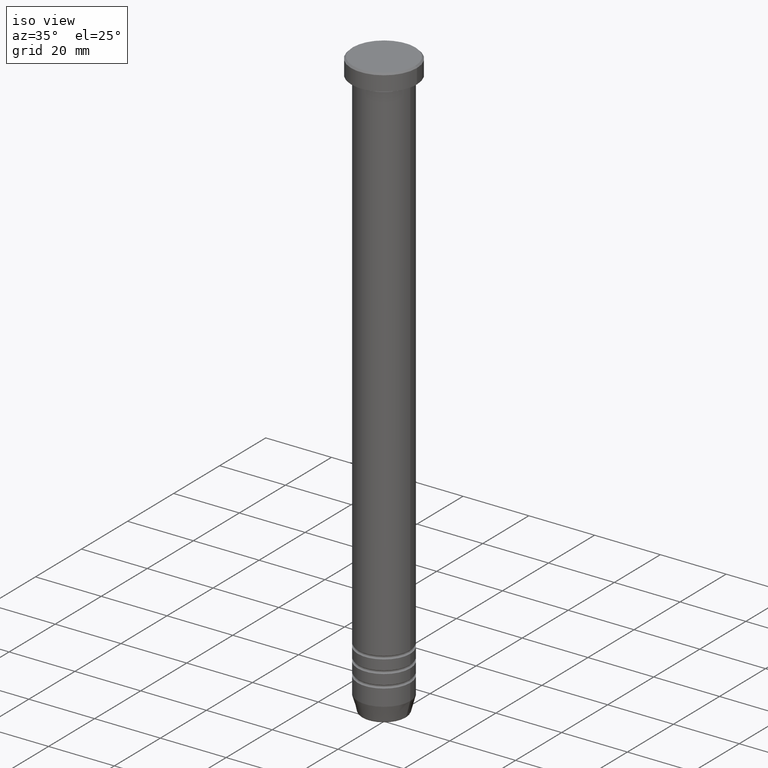
[diagram: clean part render]
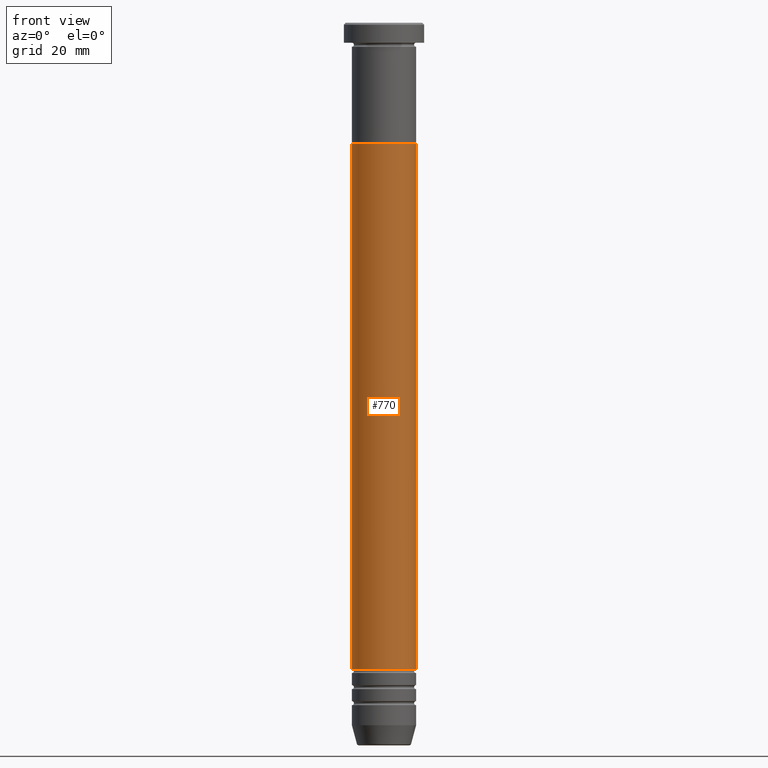
[diagram: tour spotlight — one face highlighted and labeled with its STEP entity id]
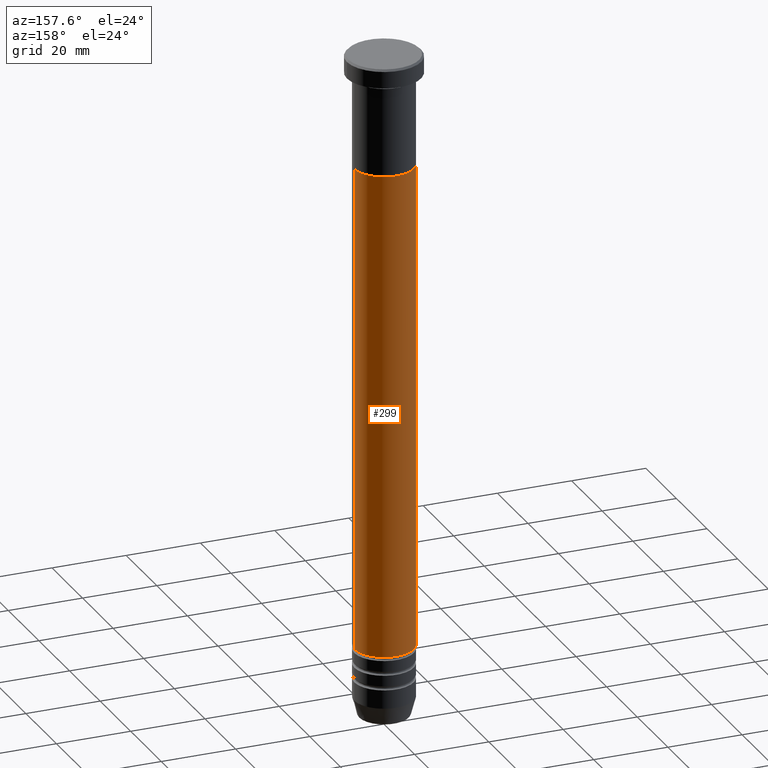
[diagram: tour spotlight — one face highlighted and labeled with its STEP entity id]
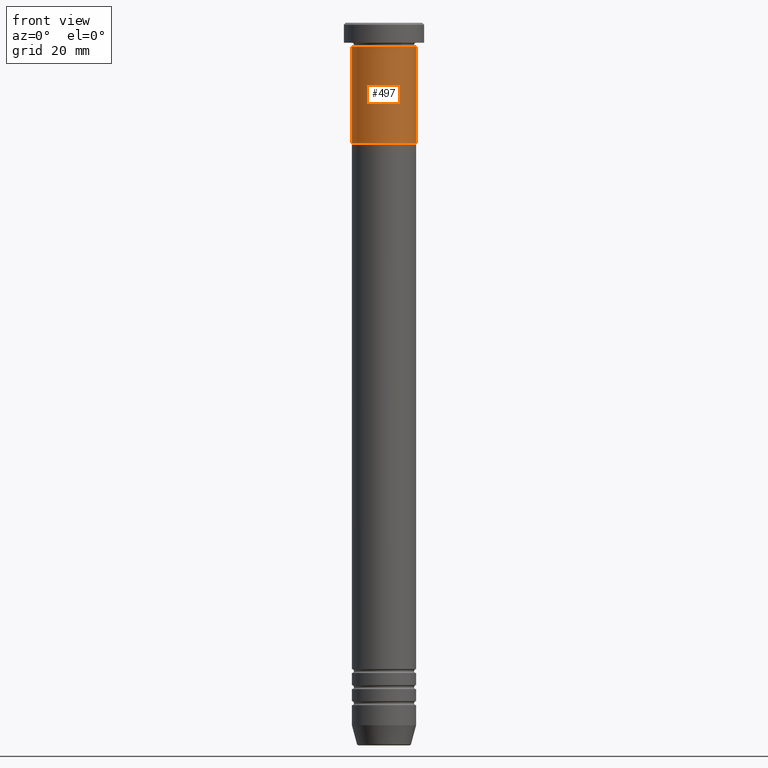
[diagram: tour spotlight — one face highlighted and labeled with its STEP entity id]
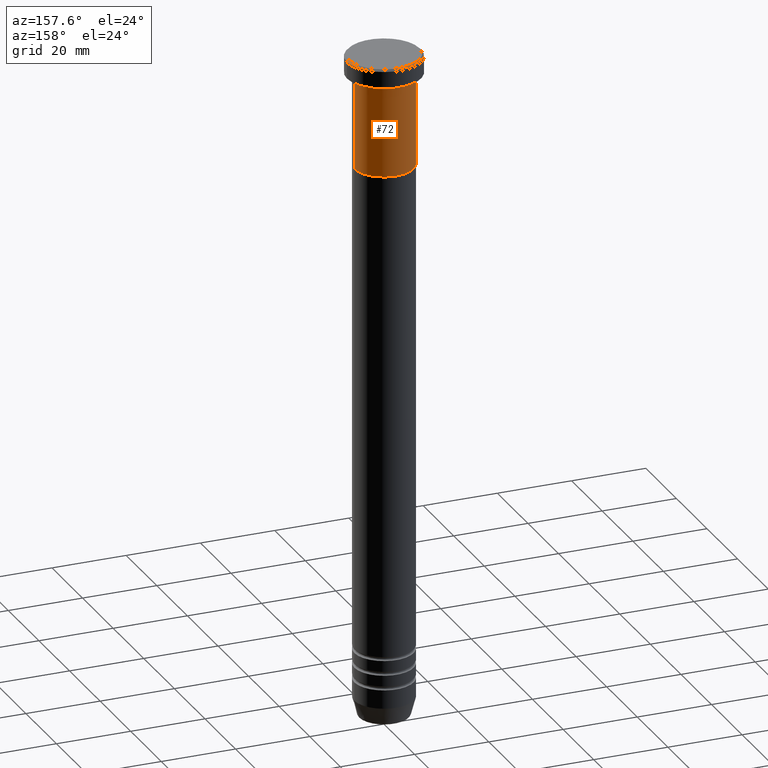
[diagram: tour spotlight — one face highlighted and labeled with its STEP entity id]
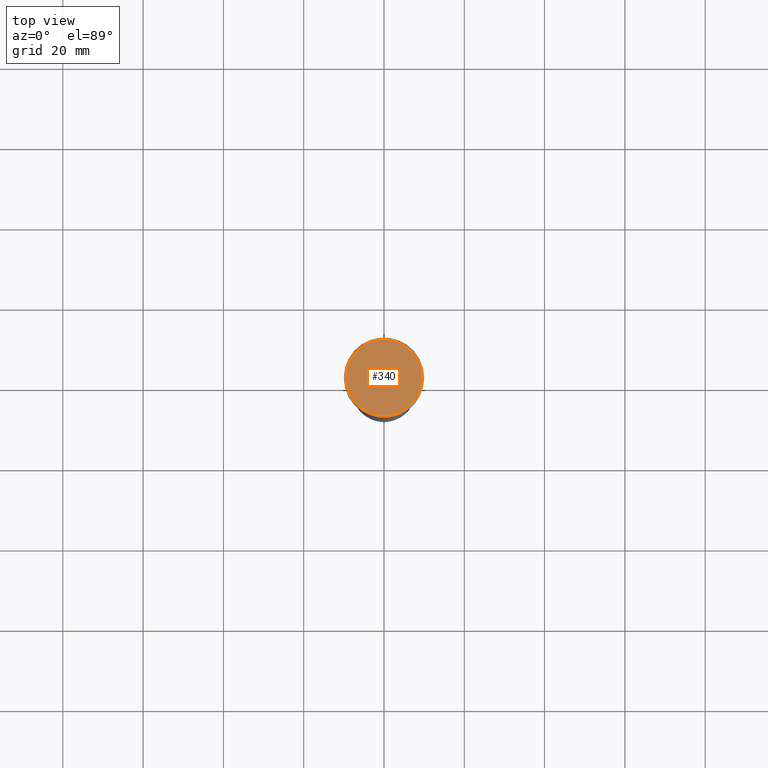
[diagram: tour spotlight — one face highlighted and labeled with its STEP entity id]
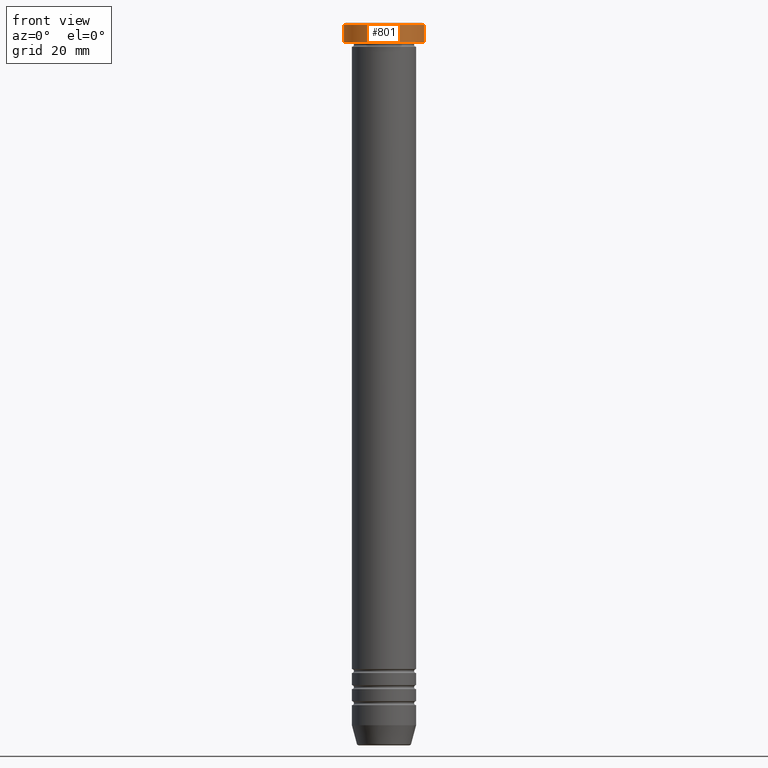
[diagram: tour spotlight — one face highlighted and labeled with its STEP entity id]
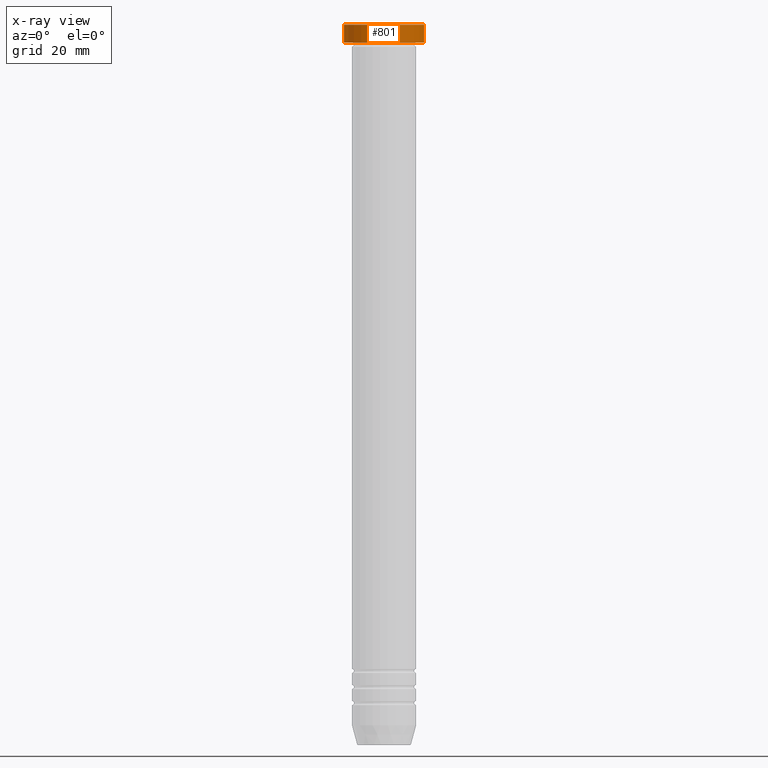
[diagram: x-ray of the same camera — body ghosted, this tour face saturated]
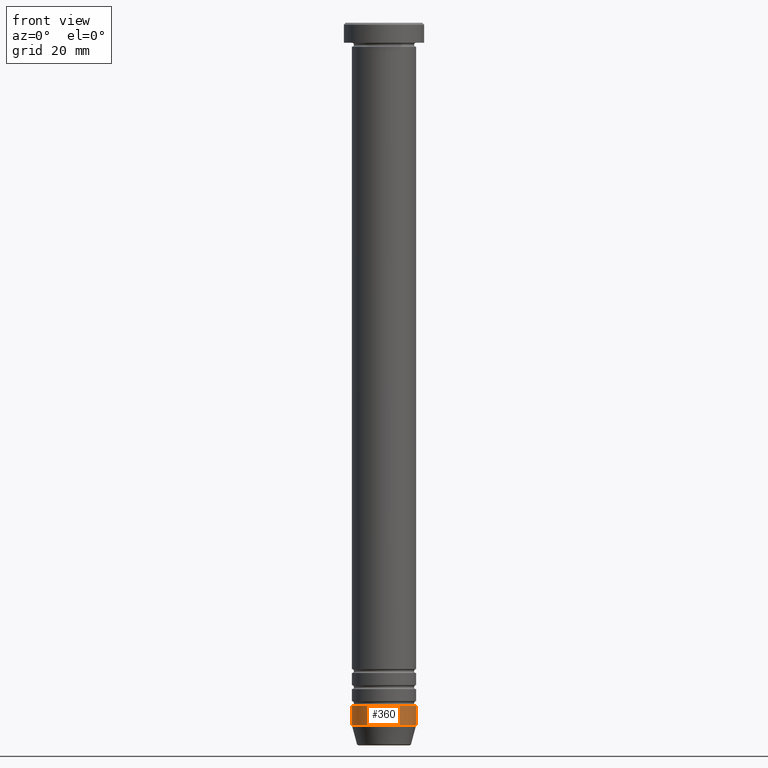
[diagram: tour spotlight — one face highlighted and labeled with its STEP entity id]
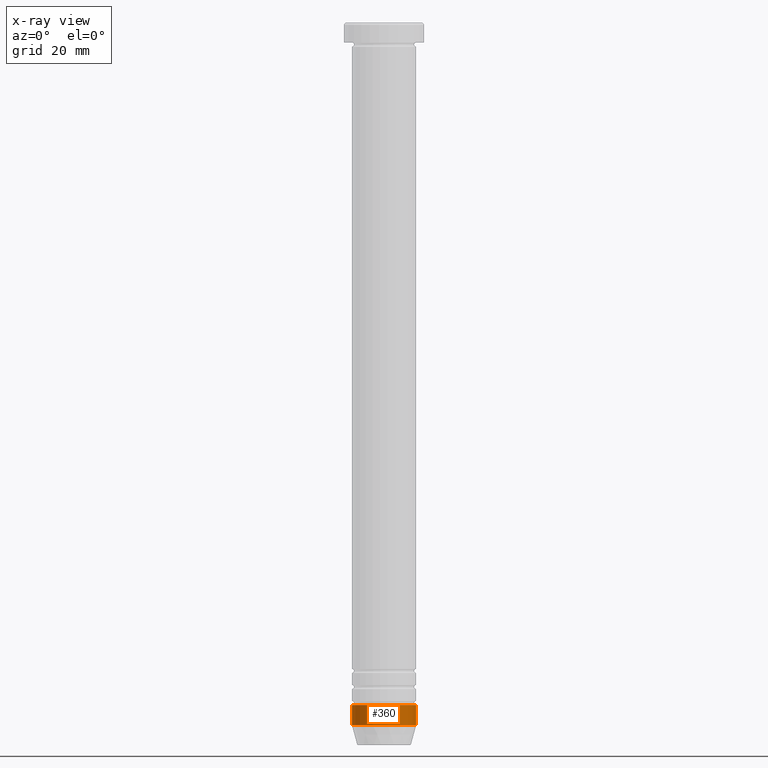
[diagram: x-ray of the same camera — body ghosted, this tour face saturated]
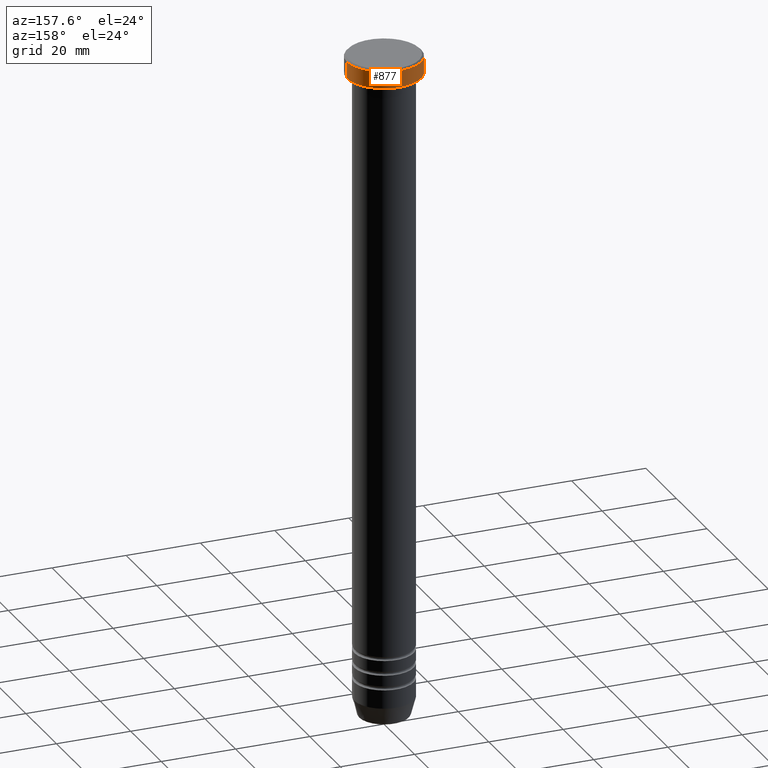
[diagram: tour spotlight — one face highlighted and labeled with its STEP entity id]
A machine part: a face-by-face anatomy tour. The part has 39 B-rep faces; the first image is the clean iso view, then the 8 largest visible faces are spotlighted one at a time (largest first), each with its STEP entity span.

Face 1 — front view, entity #770. In plain terms, the highlighted cylindrical surface (edge-blend (fillet) strip) has radius 8 mm, axis along (-0, -0, 1).
Definition (entity closure, byte-faithful):
#107 = AXIS2_PLACEMENT_3D ( 'NONE', #342, #1007, #666 ) ;
#118 = DIRECTION ( 'NONE',  ( -0.000000000000000000, -0.000000000000000000, 1.000000000000000000 ) ) ;
#130 = LINE ( 'NONE', #274, #809 ) ;
#165 = VERTEX_POINT ( 'NONE', #902 ) ;
#178 = VERTEX_POINT ( 'NONE', #323 ) ;
#195 = CARTESIAN_POINT ( 'NONE',  ( 8.000000000000000000, 0.000000000000000000, -30.00000000000000000 ) ) ;
#213 = CYLINDRICAL_SURFACE ( 'NONE', #454, 7.999999999999996447 ) ;
#223 = CIRCLE ( 'NONE', #107, 8.000000000000000000 ) ;
#224 = EDGE_CURVE ( 'NONE', #298, #248, #223, .T. ) ;
#238 = EDGE_CURVE ( 'NONE', #178, #248, #275, .T. ) ;
#244 = DIRECTION ( 'NONE',  ( -0.000000000000000000, -0.000000000000000000, 1.000000000000000000 ) ) ;
#248 = VERTEX_POINT ( 'NONE', #195 ) ;
#255 = CIRCLE ( 'NONE', #387, 7.999999999999992895 ) ;
#257 = EDGE_LOOP ( 'NONE', ( #793, #715, #863, #1016 ) ) ;
#274 = CARTESIAN_POINT ( 'NONE',  ( -7.999999999999996447, 9.797174393178821713E-16, 0.000000000000000000 ) ) ;
#275 = LINE ( 'NONE', #528, #728 ) ;
#284 = DIRECTION ( 'NONE',  ( -0.000000000000000000, -0.000000000000000000, 1.000000000000000000 ) ) ;
#298 = VERTEX_POINT ( 'NONE', #448 ) ;
#323 = CARTESIAN_POINT ( 'NONE',  ( 7.999999999999992895, 0.000000000000000000, -161.0000000000000284 ) ) ;
#342 = CARTESIAN_POINT ( 'NONE',  ( 0.000000000000000000, 0.000000000000000000, -30.00000000000000000 ) ) ;
#387 = AXIS2_PLACEMENT_3D ( 'NONE', #891, #244, #832 ) ;
#448 = CARTESIAN_POINT ( 'NONE',  ( -8.000000000000000000, 9.797174393178825657E-16, -30.00000000000000000 ) ) ;
#454 = AXIS2_PLACEMENT_3D ( 'NONE', #757, #772, #775 ) ;
#524 = EDGE_CURVE ( 'NONE', #165, #178, #255, .T. ) ;
#528 = CARTESIAN_POINT ( 'NONE',  ( 7.999999999999996447, 0.000000000000000000, 0.000000000000000000 ) ) ;
#664 = EDGE_CURVE ( 'NONE', #165, #298, #130, .T. ) ;
#666 = DIRECTION ( 'NONE',  ( 1.000000000000000000, 0.000000000000000000, 0.000000000000000000 ) ) ;
#715 = ORIENTED_EDGE ( 'NONE', *, *, #524, .T. ) ;
#728 = VECTOR ( 'NONE', #118, 1000.000000000000000 ) ;
#757 = CARTESIAN_POINT ( 'NONE',  ( 0.000000000000000000, 0.000000000000000000, 0.000000000000000000 ) ) ;
#770 = ADVANCED_FACE ( 'NONE', ( #849 ), #213, .T. ) ;
#772 = DIRECTION ( 'NONE',  ( -0.000000000000000000, -0.000000000000000000, 1.000000000000000000 ) ) ;
#775 = DIRECTION ( 'NONE',  ( 1.000000000000000000, 0.000000000000000000, 0.000000000000000000 ) ) ;
#793 = ORIENTED_EDGE ( 'NONE', *, *, #664, .F. ) ;
#809 = VECTOR ( 'NONE', #284, 1000.000000000000000 ) ;
#832 = DIRECTION ( 'NONE',  ( 1.000000000000000000, 0.000000000000000000, 0.000000000000000000 ) ) ;
#849 = FACE_OUTER_BOUND ( 'NONE', #257, .T. ) ;
#863 = ORIENTED_EDGE ( 'NONE', *, *, #238, .T. ) ;
#891 = CARTESIAN_POINT ( 'NONE',  ( 0.000000000000000000, 0.000000000000000000, -161.0000000000000284 ) ) ;
#902 = CARTESIAN_POINT ( 'NONE',  ( -7.999999999999992895, 9.797174393178819741E-16, -161.0000000000000284 ) ) ;
#1007 = DIRECTION ( 'NONE',  ( -0.000000000000000000, -0.000000000000000000, 1.000000000000000000 ) ) ;
#1016 = ORIENTED_EDGE ( 'NONE', *, *, #224, .F. ) ;

Face 2 — auxiliary view, entity #299. In plain terms, the highlighted cylindrical surface (edge-blend (fillet) strip) has radius 8 mm, axis along (-0, -0, 1).
Definition (entity closure, byte-faithful):
#66 = EDGE_LOOP ( 'NONE', ( #828, #836, #568, #269 ) ) ;
#69 = EDGE_CURVE ( 'NONE', #248, #298, #460, .T. ) ;
#109 = AXIS2_PLACEMENT_3D ( 'NONE', #1015, #374, #773 ) ;
#118 = DIRECTION ( 'NONE',  ( -0.000000000000000000, -0.000000000000000000, 1.000000000000000000 ) ) ;
#130 = LINE ( 'NONE', #274, #809 ) ;
#132 = DIRECTION ( 'NONE',  ( -0.000000000000000000, -0.000000000000000000, 1.000000000000000000 ) ) ;
#165 = VERTEX_POINT ( 'NONE', #902 ) ;
#178 = VERTEX_POINT ( 'NONE', #323 ) ;
#195 = CARTESIAN_POINT ( 'NONE',  ( 8.000000000000000000, 0.000000000000000000, -30.00000000000000000 ) ) ;
#238 = EDGE_CURVE ( 'NONE', #178, #248, #275, .T. ) ;
#248 = VERTEX_POINT ( 'NONE', #195 ) ;
#260 = EDGE_CURVE ( 'NONE', #178, #165, #422, .T. ) ;
#269 = ORIENTED_EDGE ( 'NONE', *, *, #238, .F. ) ;
#274 = CARTESIAN_POINT ( 'NONE',  ( -7.999999999999996447, 9.797174393178821713E-16, 0.000000000000000000 ) ) ;
#275 = LINE ( 'NONE', #528, #728 ) ;
#284 = DIRECTION ( 'NONE',  ( -0.000000000000000000, -0.000000000000000000, 1.000000000000000000 ) ) ;
#298 = VERTEX_POINT ( 'NONE', #448 ) ;
#299 = ADVANCED_FACE ( 'NONE', ( #358 ), #369, .T. ) ;
#323 = CARTESIAN_POINT ( 'NONE',  ( 7.999999999999992895, 0.000000000000000000, -161.0000000000000284 ) ) ;
#358 = FACE_OUTER_BOUND ( 'NONE', #66, .T. ) ;
#369 = CYLINDRICAL_SURFACE ( 'NONE', #109, 7.999999999999996447 ) ;
#374 = DIRECTION ( 'NONE',  ( -0.000000000000000000, -0.000000000000000000, 1.000000000000000000 ) ) ;
#422 = CIRCLE ( 'NONE', #1048, 7.999999999999992895 ) ;
#448 = CARTESIAN_POINT ( 'NONE',  ( -8.000000000000000000, 9.797174393178825657E-16, -30.00000000000000000 ) ) ;
#457 = DIRECTION ( 'NONE',  ( 1.000000000000000000, 0.000000000000000000, 0.000000000000000000 ) ) ;
#460 = CIRCLE ( 'NONE', #994, 8.000000000000000000 ) ;
#528 = CARTESIAN_POINT ( 'NONE',  ( 7.999999999999996447, 0.000000000000000000, 0.000000000000000000 ) ) ;
#568 = ORIENTED_EDGE ( 'NONE', *, *, #69, .F. ) ;
#612 = CARTESIAN_POINT ( 'NONE',  ( 0.000000000000000000, 0.000000000000000000, -161.0000000000000284 ) ) ;
#664 = EDGE_CURVE ( 'NONE', #165, #298, #130, .T. ) ;
#678 = DIRECTION ( 'NONE',  ( -0.000000000000000000, -0.000000000000000000, 1.000000000000000000 ) ) ;
#703 = DIRECTION ( 'NONE',  ( 1.000000000000000000, 0.000000000000000000, 0.000000000000000000 ) ) ;
#728 = VECTOR ( 'NONE', #118, 1000.000000000000000 ) ;
#767 = CARTESIAN_POINT ( 'NONE',  ( 0.000000000000000000, 0.000000000000000000, -30.00000000000000000 ) ) ;
#773 = DIRECTION ( 'NONE',  ( 1.000000000000000000, 0.000000000000000000, 0.000000000000000000 ) ) ;
#809 = VECTOR ( 'NONE', #284, 1000.000000000000000 ) ;
#828 = ORIENTED_EDGE ( 'NONE', *, *, #260, .T. ) ;
#836 = ORIENTED_EDGE ( 'NONE', *, *, #664, .T. ) ;
#902 = CARTESIAN_POINT ( 'NONE',  ( -7.999999999999992895, 9.797174393178819741E-16, -161.0000000000000284 ) ) ;
#994 = AXIS2_PLACEMENT_3D ( 'NONE', #767, #132, #457 ) ;
#1015 = CARTESIAN_POINT ( 'NONE',  ( 0.000000000000000000, 0.000000000000000000, 0.000000000000000000 ) ) ;
#1048 = AXIS2_PLACEMENT_3D ( 'NONE', #612, #678, #703 ) ;

Face 3 — front view, entity #497. In plain terms, the highlighted cylindrical surface (edge-blend (fillet) strip) has radius 8 mm, axis along (-0, -0, 1).
Definition (entity closure, byte-faithful):
#19 = EDGE_CURVE ( 'NONE', #185, #112, #368, .T. ) ;
#37 = EDGE_LOOP ( 'NONE', ( #707, #582, #105, #536 ) ) ;
#65 = CARTESIAN_POINT ( 'NONE',  ( -8.000000000000000000, 9.797174393178825657E-16, -6.000000000000000000 ) ) ;
#105 = ORIENTED_EDGE ( 'NONE', *, *, #19, .T. ) ;
#106 = VECTOR ( 'NONE', #416, 1000.000000000000000 ) ;
#112 = VERTEX_POINT ( 'NONE', #587 ) ;
#136 = DIRECTION ( 'NONE',  ( 1.000000000000000000, 0.000000000000000000, 0.000000000000000000 ) ) ;
#159 = CIRCLE ( 'NONE', #740, 8.000000000000000000 ) ;
#185 = VERTEX_POINT ( 'NONE', #815 ) ;
#296 = EDGE_CURVE ( 'NONE', #669, #185, #521, .T. ) ;
#321 = DIRECTION ( 'NONE',  ( 1.000000000000000000, 0.000000000000000000, 0.000000000000000000 ) ) ;
#363 = CARTESIAN_POINT ( 'NONE',  ( 8.000000000000000000, 0.000000000000000000, 0.000000000000000000 ) ) ;
#368 = LINE ( 'NONE', #363, #1036 ) ;
#413 = CYLINDRICAL_SURFACE ( 'NONE', #764, 8.000000000000000000 ) ;
#416 = DIRECTION ( 'NONE',  ( -0.000000000000000000, -0.000000000000000000, 1.000000000000000000 ) ) ;
#417 = VERTEX_POINT ( 'NONE', #65 ) ;
#488 = CARTESIAN_POINT ( 'NONE',  ( 0.000000000000000000, 0.000000000000000000, 0.000000000000000000 ) ) ;
#497 = ADVANCED_FACE ( 'NONE', ( #736 ), #413, .T. ) ;
#521 = CIRCLE ( 'NONE', #973, 8.000000000000000000 ) ;
#533 = DIRECTION ( 'NONE',  ( -0.000000000000000000, -0.000000000000000000, 1.000000000000000000 ) ) ;
#536 = ORIENTED_EDGE ( 'NONE', *, *, #774, .F. ) ;
#582 = ORIENTED_EDGE ( 'NONE', *, *, #296, .T. ) ;
#587 = CARTESIAN_POINT ( 'NONE',  ( 8.000000000000000000, 0.000000000000000000, -6.000000000000000000 ) ) ;
#611 = DIRECTION ( 'NONE',  ( 1.000000000000000000, 0.000000000000000000, 0.000000000000000000 ) ) ;
#669 = VERTEX_POINT ( 'NONE', #762 ) ;
#692 = CARTESIAN_POINT ( 'NONE',  ( 0.000000000000000000, 0.000000000000000000, -6.000000000000000000 ) ) ;
#707 = ORIENTED_EDGE ( 'NONE', *, *, #1019, .F. ) ;
#736 = FACE_OUTER_BOUND ( 'NONE', #37, .T. ) ;
#740 = AXIS2_PLACEMENT_3D ( 'NONE', #692, #1031, #611 ) ;
#762 = CARTESIAN_POINT ( 'NONE',  ( -8.000000000000000000, 9.797174393178825657E-16, -30.00000000000000000 ) ) ;
#764 = AXIS2_PLACEMENT_3D ( 'NONE', #488, #807, #321 ) ;
#774 = EDGE_CURVE ( 'NONE', #417, #112, #159, .T. ) ;
#807 = DIRECTION ( 'NONE',  ( -0.000000000000000000, -0.000000000000000000, 1.000000000000000000 ) ) ;
#815 = CARTESIAN_POINT ( 'NONE',  ( 8.000000000000000000, 0.000000000000000000, -30.00000000000000000 ) ) ;
#855 = CARTESIAN_POINT ( 'NONE',  ( 0.000000000000000000, 0.000000000000000000, -30.00000000000000000 ) ) ;
#910 = CARTESIAN_POINT ( 'NONE',  ( -8.000000000000000000, 9.797174393178825657E-16, 0.000000000000000000 ) ) ;
#920 = LINE ( 'NONE', #910, #106 ) ;
#947 = DIRECTION ( 'NONE',  ( -0.000000000000000000, -0.000000000000000000, 1.000000000000000000 ) ) ;
#973 = AXIS2_PLACEMENT_3D ( 'NONE', #855, #533, #136 ) ;
#1019 = EDGE_CURVE ( 'NONE', #669, #417, #920, .T. ) ;
#1031 = DIRECTION ( 'NONE',  ( -0.000000000000000000, -0.000000000000000000, 1.000000000000000000 ) ) ;
#1036 = VECTOR ( 'NONE', #947, 1000.000000000000000 ) ;

Face 4 — auxiliary view, entity #72. In plain terms, the highlighted cylindrical surface (edge-blend (fillet) strip) has radius 8 mm, axis along (-0, -0, 1).
Definition (entity closure, byte-faithful):
#19 = EDGE_CURVE ( 'NONE', #185, #112, #368, .T. ) ;
#60 = DIRECTION ( 'NONE',  ( 1.000000000000000000, 0.000000000000000000, 0.000000000000000000 ) ) ;
#65 = CARTESIAN_POINT ( 'NONE',  ( -8.000000000000000000, 9.797174393178825657E-16, -6.000000000000000000 ) ) ;
#72 = ADVANCED_FACE ( 'NONE', ( #546 ), #700, .T. ) ;
#106 = VECTOR ( 'NONE', #416, 1000.000000000000000 ) ;
#112 = VERTEX_POINT ( 'NONE', #587 ) ;
#148 = AXIS2_PLACEMENT_3D ( 'NONE', #254, #509, #755 ) ;
#152 = EDGE_CURVE ( 'NONE', #112, #417, #304, .T. ) ;
#185 = VERTEX_POINT ( 'NONE', #815 ) ;
#208 = CIRCLE ( 'NONE', #225, 8.000000000000000000 ) ;
#214 = DIRECTION ( 'NONE',  ( -0.000000000000000000, -0.000000000000000000, 1.000000000000000000 ) ) ;
#225 = AXIS2_PLACEMENT_3D ( 'NONE', #948, #214, #60 ) ;
#254 = CARTESIAN_POINT ( 'NONE',  ( 0.000000000000000000, 0.000000000000000000, -6.000000000000000000 ) ) ;
#304 = CIRCLE ( 'NONE', #148, 8.000000000000000000 ) ;
#324 = EDGE_CURVE ( 'NONE', #185, #669, #208, .T. ) ;
#363 = CARTESIAN_POINT ( 'NONE',  ( 8.000000000000000000, 0.000000000000000000, 0.000000000000000000 ) ) ;
#368 = LINE ( 'NONE', #363, #1036 ) ;
#389 = DIRECTION ( 'NONE',  ( -0.000000000000000000, -0.000000000000000000, 1.000000000000000000 ) ) ;
#396 = DIRECTION ( 'NONE',  ( 1.000000000000000000, 0.000000000000000000, 0.000000000000000000 ) ) ;
#416 = DIRECTION ( 'NONE',  ( -0.000000000000000000, -0.000000000000000000, 1.000000000000000000 ) ) ;
#417 = VERTEX_POINT ( 'NONE', #65 ) ;
#509 = DIRECTION ( 'NONE',  ( -0.000000000000000000, -0.000000000000000000, 1.000000000000000000 ) ) ;
#546 = FACE_OUTER_BOUND ( 'NONE', #643, .T. ) ;
#579 = ORIENTED_EDGE ( 'NONE', *, *, #19, .F. ) ;
#587 = CARTESIAN_POINT ( 'NONE',  ( 8.000000000000000000, 0.000000000000000000, -6.000000000000000000 ) ) ;
#643 = EDGE_LOOP ( 'NONE', ( #1014, #942, #923, #579 ) ) ;
#645 = AXIS2_PLACEMENT_3D ( 'NONE', #871, #389, #396 ) ;
#669 = VERTEX_POINT ( 'NONE', #762 ) ;
#700 = CYLINDRICAL_SURFACE ( 'NONE', #645, 8.000000000000000000 ) ;
#755 = DIRECTION ( 'NONE',  ( 1.000000000000000000, 0.000000000000000000, 0.000000000000000000 ) ) ;
#762 = CARTESIAN_POINT ( 'NONE',  ( -8.000000000000000000, 9.797174393178825657E-16, -30.00000000000000000 ) ) ;
#815 = CARTESIAN_POINT ( 'NONE',  ( 8.000000000000000000, 0.000000000000000000, -30.00000000000000000 ) ) ;
#871 = CARTESIAN_POINT ( 'NONE',  ( 0.000000000000000000, 0.000000000000000000, 0.000000000000000000 ) ) ;
#910 = CARTESIAN_POINT ( 'NONE',  ( -8.000000000000000000, 9.797174393178825657E-16, 0.000000000000000000 ) ) ;
#920 = LINE ( 'NONE', #910, #106 ) ;
#923 = ORIENTED_EDGE ( 'NONE', *, *, #152, .F. ) ;
#942 = ORIENTED_EDGE ( 'NONE', *, *, #1019, .T. ) ;
#947 = DIRECTION ( 'NONE',  ( -0.000000000000000000, -0.000000000000000000, 1.000000000000000000 ) ) ;
#948 = CARTESIAN_POINT ( 'NONE',  ( 0.000000000000000000, 0.000000000000000000, -30.00000000000000000 ) ) ;
#1014 = ORIENTED_EDGE ( 'NONE', *, *, #324, .T. ) ;
#1019 = EDGE_CURVE ( 'NONE', #669, #417, #920, .T. ) ;
#1036 = VECTOR ( 'NONE', #947, 1000.000000000000000 ) ;

Face 5 — top view, entity #340. In plain terms, the highlighted planar face has unit normal (0, -0, 1).
Definition (entity closure, byte-faithful):
#18 = ORIENTED_EDGE ( 'NONE', *, *, #935, .T. ) ;
#77 = ORIENTED_EDGE ( 'NONE', *, *, #614, .T. ) ;
#98 = DIRECTION ( 'NONE',  ( 1.000000000000000000, 0.000000000000000000, 0.000000000000000000 ) ) ;
#157 = VERTEX_POINT ( 'NONE', #823 ) ;
#158 = AXIS2_PLACEMENT_3D ( 'NONE', #688, #1026, #635 ) ;
#171 = DIRECTION ( 'NONE',  ( -0.000000000000000000, -0.000000000000000000, 1.000000000000000000 ) ) ;
#205 = CIRCLE ( 'NONE', #779, 9.500000000000005329 ) ;
#206 = AXIS2_PLACEMENT_3D ( 'NONE', #803, #171, #394 ) ;
#217 = CARTESIAN_POINT ( 'NONE',  ( -9.500000000000005329, 0.000000000000000000, 0.000000000000000000 ) ) ;
#309 = EDGE_LOOP ( 'NONE', ( #18, #77 ) ) ;
#340 = ADVANCED_FACE ( 'NONE', ( #602 ), #364, .T. ) ;
#364 = PLANE ( 'NONE',  #158 ) ;
#394 = DIRECTION ( 'NONE',  ( 1.000000000000000000, 0.000000000000000000, 0.000000000000000000 ) ) ;
#493 = DIRECTION ( 'NONE',  ( -0.000000000000000000, -0.000000000000000000, 1.000000000000000000 ) ) ;
#507 = CIRCLE ( 'NONE', #206, 9.500000000000005329 ) ;
#602 = FACE_OUTER_BOUND ( 'NONE', #309, .T. ) ;
#614 = EDGE_CURVE ( 'NONE', #157, #913, #205, .T. ) ;
#635 = DIRECTION ( 'NONE',  ( 1.000000000000000000, 0.000000000000000000, 0.000000000000000000 ) ) ;
#688 = CARTESIAN_POINT ( 'NONE',  ( 0.000000000000000000, 0.000000000000000000, 0.000000000000000000 ) ) ;
#779 = AXIS2_PLACEMENT_3D ( 'NONE', #901, #493, #98 ) ;
#803 = CARTESIAN_POINT ( 'NONE',  ( 0.000000000000000000, 0.000000000000000000, 0.000000000000000000 ) ) ;
#823 = CARTESIAN_POINT ( 'NONE',  ( 9.500000000000005329, 1.194030629168669864E-15, 0.000000000000000000 ) ) ;
#901 = CARTESIAN_POINT ( 'NONE',  ( 0.000000000000000000, 0.000000000000000000, 0.000000000000000000 ) ) ;
#913 = VERTEX_POINT ( 'NONE', #217 ) ;
#935 = EDGE_CURVE ( 'NONE', #913, #157, #507, .T. ) ;
#1026 = DIRECTION ( 'NONE',  ( 0.000000000000000000, -0.000000000000000000, 1.000000000000000000 ) ) ;

Face 6 — front view, entity #801. An x-ray twin of the same camera follows (body ghosted, this face saturated) — the face is partly hidden behind the body. In plain terms, the highlighted cylindrical surface (partial cylindrical patch) has radius 10 mm, axis along (-0, -0, 1).
Definition (entity closure, byte-faithful):
#15 = ORIENTED_EDGE ( 'NONE', *, *, #543, .T. ) ;
#71 = AXIS2_PLACEMENT_3D ( 'NONE', #501, #1000, #822 ) ;
#129 = VECTOR ( 'NONE', #440, 1000.000000000000000 ) ;
#169 = EDGE_LOOP ( 'NONE', ( #494, #862, #380, #15 ) ) ;
#230 = CARTESIAN_POINT ( 'NONE',  ( -10.00000000000000000, 1.224646799147353256E-15, -0.4999999999999987232 ) ) ;
#268 = EDGE_CURVE ( 'NONE', #551, #392, #523, .T. ) ;
#273 = DIRECTION ( 'NONE',  ( -0.000000000000000000, -0.000000000000000000, 1.000000000000000000 ) ) ;
#294 = CARTESIAN_POINT ( 'NONE',  ( -10.00000000000000000, 1.224646799147353256E-15, -5.000000000000000000 ) ) ;
#295 = CYLINDRICAL_SURFACE ( 'NONE', #897, 10.00000000000000000 ) ;
#322 = VERTEX_POINT ( 'NONE', #294 ) ;
#357 = CARTESIAN_POINT ( 'NONE',  ( -10.00000000000000000, 1.224646799147353256E-15, 0.000000000000000000 ) ) ;
#380 = ORIENTED_EDGE ( 'NONE', *, *, #268, .T. ) ;
#390 = FACE_OUTER_BOUND ( 'NONE', #169, .T. ) ;
#392 = VERTEX_POINT ( 'NONE', #787 ) ;
#423 = VERTEX_POINT ( 'NONE', #230 ) ;
#433 = LINE ( 'NONE', #357, #506 ) ;
#440 = DIRECTION ( 'NONE',  ( -0.000000000000000000, -0.000000000000000000, 1.000000000000000000 ) ) ;
#453 = CARTESIAN_POINT ( 'NONE',  ( 10.00000000000000000, 0.000000000000000000, 0.000000000000000000 ) ) ;
#494 = ORIENTED_EDGE ( 'NONE', *, *, #706, .F. ) ;
#501 = CARTESIAN_POINT ( 'NONE',  ( 0.000000000000000000, 0.000000000000000000, -0.4999999999999987232 ) ) ;
#504 = DIRECTION ( 'NONE',  ( 1.000000000000000000, 0.000000000000000000, 0.000000000000000000 ) ) ;
#506 = VECTOR ( 'NONE', #668, 1000.000000000000000 ) ;
#523 = LINE ( 'NONE', #453, #129 ) ;
#537 = CARTESIAN_POINT ( 'NONE',  ( 0.000000000000000000, 0.000000000000000000, 0.000000000000000000 ) ) ;
#543 = EDGE_CURVE ( 'NONE', #392, #423, #657, .T. ) ;
#551 = VERTEX_POINT ( 'NONE', #576 ) ;
#554 = DIRECTION ( 'NONE',  ( -0.000000000000000000, -0.000000000000000000, 1.000000000000000000 ) ) ;
#556 = CIRCLE ( 'NONE', #743, 10.00000000000000000 ) ;
#570 = DIRECTION ( 'NONE',  ( 1.000000000000000000, 0.000000000000000000, 0.000000000000000000 ) ) ;
#576 = CARTESIAN_POINT ( 'NONE',  ( 10.00000000000000000, 0.000000000000000000, -5.000000000000000000 ) ) ;
#657 = CIRCLE ( 'NONE', #71, 10.00000000000000000 ) ;
#668 = DIRECTION ( 'NONE',  ( -0.000000000000000000, -0.000000000000000000, 1.000000000000000000 ) ) ;
#706 = EDGE_CURVE ( 'NONE', #322, #423, #433, .T. ) ;
#743 = AXIS2_PLACEMENT_3D ( 'NONE', #903, #273, #504 ) ;
#787 = CARTESIAN_POINT ( 'NONE',  ( 10.00000000000000000, 0.000000000000000000, -0.4999999999999987232 ) ) ;
#801 = ADVANCED_FACE ( 'NONE', ( #390 ), #295, .T. ) ;
#822 = DIRECTION ( 'NONE',  ( 1.000000000000000000, 0.000000000000000000, 0.000000000000000000 ) ) ;
#862 = ORIENTED_EDGE ( 'NONE', *, *, #1049, .T. ) ;
#897 = AXIS2_PLACEMENT_3D ( 'NONE', #537, #554, #570 ) ;
#903 = CARTESIAN_POINT ( 'NONE',  ( 0.000000000000000000, 0.000000000000000000, -5.000000000000000000 ) ) ;
#1000 = DIRECTION ( 'NONE',  ( 0.000000000000000000, 0.000000000000000000, -1.000000000000000000 ) ) ;
#1049 = EDGE_CURVE ( 'NONE', #322, #551, #556, .T. ) ;

Face 7 — front view, entity #360. An x-ray twin of the same camera follows (body ghosted, this face saturated) — the face is partly hidden behind the body. In plain terms, the highlighted cylindrical surface (edge-blend (fillet) strip) has radius 8 mm, axis along (-0, -0, 1).
Definition (entity closure, byte-faithful):
#114 = VERTEX_POINT ( 'NONE', #407 ) ;
#149 = CYLINDRICAL_SURFACE ( 'NONE', #878, 8.000000000000000000 ) ;
#151 = DIRECTION ( 'NONE',  ( -0.000000000000000000, -0.000000000000000000, 1.000000000000000000 ) ) ;
#285 = ORIENTED_EDGE ( 'NONE', *, *, #489, .F. ) ;
#308 = DIRECTION ( 'NONE',  ( -0.000000000000000000, -0.000000000000000000, 1.000000000000000000 ) ) ;
#360 = ADVANCED_FACE ( 'NONE', ( #795 ), #149, .T. ) ;
#398 = ORIENTED_EDGE ( 'NONE', *, *, #1051, .T. ) ;
#404 = VECTOR ( 'NONE', #151, 1000.000000000000000 ) ;
#407 = CARTESIAN_POINT ( 'NONE',  ( 8.000000000000000000, 0.000000000000000000, -175.0000000000000284 ) ) ;
#428 = CARTESIAN_POINT ( 'NONE',  ( 0.000000000000000000, 0.000000000000000000, -175.0000000000000284 ) ) ;
#431 = CARTESIAN_POINT ( 'NONE',  ( 8.000000000000000000, 0.000000000000000000, -170.0000000000000000 ) ) ;
#445 = VERTEX_POINT ( 'NONE', #1042 ) ;
#461 = CARTESIAN_POINT ( 'NONE',  ( 0.000000000000000000, 0.000000000000000000, 0.000000000000000000 ) ) ;
#464 = DIRECTION ( 'NONE',  ( 1.000000000000000000, 0.000000000000000000, 0.000000000000000000 ) ) ;
#489 = EDGE_CURVE ( 'NONE', #840, #445, #805, .T. ) ;
#491 = DIRECTION ( 'NONE',  ( -0.000000000000000000, -0.000000000000000000, 1.000000000000000000 ) ) ;
#516 = EDGE_CURVE ( 'NONE', #114, #976, #586, .T. ) ;
#553 = AXIS2_PLACEMENT_3D ( 'NONE', #428, #839, #990 ) ;
#573 = CIRCLE ( 'NONE', #553, 8.000000000000000000 ) ;
#586 = LINE ( 'NONE', #649, #714 ) ;
#649 = CARTESIAN_POINT ( 'NONE',  ( 8.000000000000000000, 0.000000000000000000, 0.000000000000000000 ) ) ;
#691 = EDGE_LOOP ( 'NONE', ( #285, #398, #1020, #754 ) ) ;
#714 = VECTOR ( 'NONE', #979, 1000.000000000000000 ) ;
#727 = CARTESIAN_POINT ( 'NONE',  ( -8.000000000000000000, 9.797174393178825657E-16, -175.0000000000000284 ) ) ;
#754 = ORIENTED_EDGE ( 'NONE', *, *, #915, .F. ) ;
#795 = FACE_OUTER_BOUND ( 'NONE', #691, .T. ) ;
#805 = LINE ( 'NONE', #873, #404 ) ;
#826 = AXIS2_PLACEMENT_3D ( 'NONE', #889, #491, #1059 ) ;
#839 = DIRECTION ( 'NONE',  ( -0.000000000000000000, -0.000000000000000000, 1.000000000000000000 ) ) ;
#840 = VERTEX_POINT ( 'NONE', #727 ) ;
#873 = CARTESIAN_POINT ( 'NONE',  ( -8.000000000000000000, 9.797174393178825657E-16, 0.000000000000000000 ) ) ;
#878 = AXIS2_PLACEMENT_3D ( 'NONE', #461, #308, #464 ) ;
#889 = CARTESIAN_POINT ( 'NONE',  ( 0.000000000000000000, 0.000000000000000000, -170.0000000000000000 ) ) ;
#915 = EDGE_CURVE ( 'NONE', #445, #976, #1029, .T. ) ;
#976 = VERTEX_POINT ( 'NONE', #431 ) ;
#979 = DIRECTION ( 'NONE',  ( -0.000000000000000000, -0.000000000000000000, 1.000000000000000000 ) ) ;
#990 = DIRECTION ( 'NONE',  ( 1.000000000000000000, 0.000000000000000000, 0.000000000000000000 ) ) ;
#1020 = ORIENTED_EDGE ( 'NONE', *, *, #516, .T. ) ;
#1029 = CIRCLE ( 'NONE', #826, 8.000000000000000000 ) ;
#1042 = CARTESIAN_POINT ( 'NONE',  ( -8.000000000000000000, 9.797174393178825657E-16, -170.0000000000000000 ) ) ;
#1051 = EDGE_CURVE ( 'NONE', #840, #114, #573, .T. ) ;
#1059 = DIRECTION ( 'NONE',  ( 1.000000000000000000, 0.000000000000000000, 0.000000000000000000 ) ) ;

Face 8 — auxiliary view, entity #877. In plain terms, the highlighted cylindrical surface (partial cylindrical patch) has radius 10 mm, axis along (-0, -0, 1).
Definition (entity closure, byte-faithful):
#96 = EDGE_CURVE ( 'NONE', #551, #322, #356, .T. ) ;
#129 = VECTOR ( 'NONE', #440, 1000.000000000000000 ) ;
#175 = AXIS2_PLACEMENT_3D ( 'NONE', #247, #952, #399 ) ;
#183 = CARTESIAN_POINT ( 'NONE',  ( 0.000000000000000000, 0.000000000000000000, -5.000000000000000000 ) ) ;
#230 = CARTESIAN_POINT ( 'NONE',  ( -10.00000000000000000, 1.224646799147353256E-15, -0.4999999999999987232 ) ) ;
#234 = AXIS2_PLACEMENT_3D ( 'NONE', #563, #733, #974 ) ;
#247 = CARTESIAN_POINT ( 'NONE',  ( 0.000000000000000000, 0.000000000000000000, -0.4999999999999987232 ) ) ;
#268 = EDGE_CURVE ( 'NONE', #551, #392, #523, .T. ) ;
#294 = CARTESIAN_POINT ( 'NONE',  ( -10.00000000000000000, 1.224646799147353256E-15, -5.000000000000000000 ) ) ;
#319 = ORIENTED_EDGE ( 'NONE', *, *, #268, .F. ) ;
#322 = VERTEX_POINT ( 'NONE', #294 ) ;
#356 = CIRCLE ( 'NONE', #961, 10.00000000000000000 ) ;
#357 = CARTESIAN_POINT ( 'NONE',  ( -10.00000000000000000, 1.224646799147353256E-15, 0.000000000000000000 ) ) ;
#392 = VERTEX_POINT ( 'NONE', #787 ) ;
#399 = DIRECTION ( 'NONE',  ( 1.000000000000000000, 0.000000000000000000, 0.000000000000000000 ) ) ;
#423 = VERTEX_POINT ( 'NONE', #230 ) ;
#427 = DIRECTION ( 'NONE',  ( 1.000000000000000000, 0.000000000000000000, 0.000000000000000000 ) ) ;
#432 = EDGE_LOOP ( 'NONE', ( #904, #983, #545, #319 ) ) ;
#433 = LINE ( 'NONE', #357, #506 ) ;
#440 = DIRECTION ( 'NONE',  ( -0.000000000000000000, -0.000000000000000000, 1.000000000000000000 ) ) ;
#453 = CARTESIAN_POINT ( 'NONE',  ( 10.00000000000000000, 0.000000000000000000, 0.000000000000000000 ) ) ;
#485 = CIRCLE ( 'NONE', #175, 10.00000000000000000 ) ;
#506 = VECTOR ( 'NONE', #668, 1000.000000000000000 ) ;
#523 = LINE ( 'NONE', #453, #129 ) ;
#545 = ORIENTED_EDGE ( 'NONE', *, *, #804, .T. ) ;
#551 = VERTEX_POINT ( 'NONE', #576 ) ;
#560 = CYLINDRICAL_SURFACE ( 'NONE', #234, 10.00000000000000000 ) ;
#563 = CARTESIAN_POINT ( 'NONE',  ( 0.000000000000000000, 0.000000000000000000, 0.000000000000000000 ) ) ;
#576 = CARTESIAN_POINT ( 'NONE',  ( 10.00000000000000000, 0.000000000000000000, -5.000000000000000000 ) ) ;
#650 = DIRECTION ( 'NONE',  ( -0.000000000000000000, -0.000000000000000000, 1.000000000000000000 ) ) ;
#668 = DIRECTION ( 'NONE',  ( -0.000000000000000000, -0.000000000000000000, 1.000000000000000000 ) ) ;
#706 = EDGE_CURVE ( 'NONE', #322, #423, #433, .T. ) ;
#717 = FACE_OUTER_BOUND ( 'NONE', #432, .T. ) ;
#733 = DIRECTION ( 'NONE',  ( -0.000000000000000000, -0.000000000000000000, 1.000000000000000000 ) ) ;
#787 = CARTESIAN_POINT ( 'NONE',  ( 10.00000000000000000, 0.000000000000000000, -0.4999999999999987232 ) ) ;
#804 = EDGE_CURVE ( 'NONE', #423, #392, #485, .T. ) ;
#877 = ADVANCED_FACE ( 'NONE', ( #717 ), #560, .T. ) ;
#904 = ORIENTED_EDGE ( 'NONE', *, *, #96, .T. ) ;
#952 = DIRECTION ( 'NONE',  ( 0.000000000000000000, 0.000000000000000000, -1.000000000000000000 ) ) ;
#961 = AXIS2_PLACEMENT_3D ( 'NONE', #183, #650, #427 ) ;
#974 = DIRECTION ( 'NONE',  ( 1.000000000000000000, 0.000000000000000000, 0.000000000000000000 ) ) ;
#983 = ORIENTED_EDGE ( 'NONE', *, *, #706, .T. ) ;